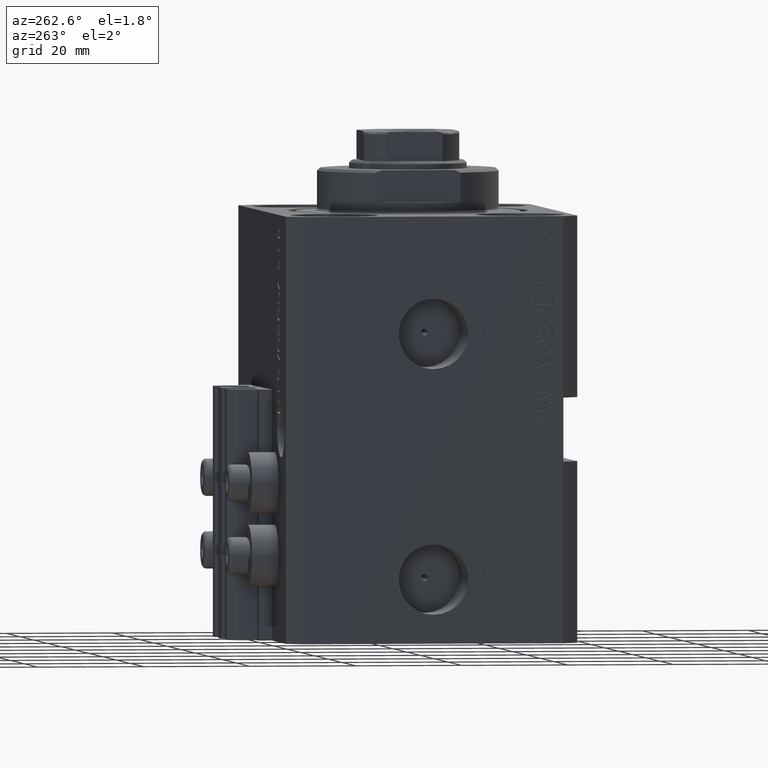
[diagram: clean part render]
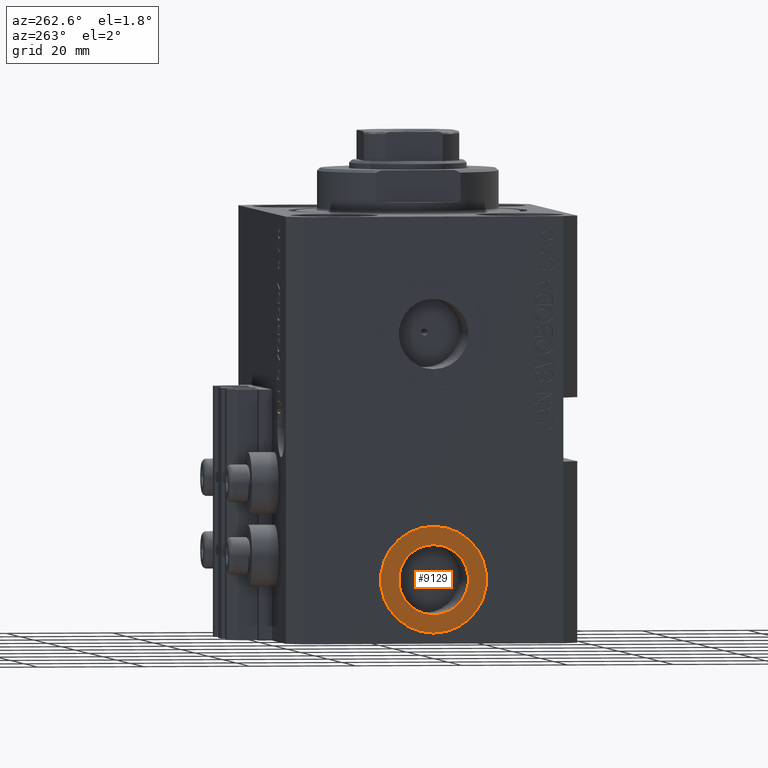
[diagram: same view with one face highlighted and labeled with its STEP entity id]
A machine part, auxiliary view. The second image highlights one B-rep face of the part: STEP entity #9129.
In plain terms, the highlighted planar face has unit normal (-1, 0, 0).
Its self-contained STEP definition (entity closure, byte-faithful):
#1169 = ORIENTED_EDGE ( 'NONE', *, *, #44015, .T. ) ;
#1588 = CARTESIAN_POINT ( 'NONE',  ( -37.39999999999999147, -8.327598234202001119E-15, -58.00000000000000711 ) ) ;
#1876 = DIRECTION ( 'NONE',  ( 0.000000000000000000, 0.000000000000000000, 1.000000000000000000 ) ) ;
#4570 = AXIS2_PLACEMENT_3D ( 'NONE', #13533, #20936, #39599 ) ;
#5835 = EDGE_CURVE ( 'NONE', #27122, #43324, #6504, .T. ) ;
#6504 = CIRCLE ( 'NONE', #15688, 6.580000000000002736 ) ;
#6884 = AXIS2_PLACEMENT_3D ( 'NONE', #28422, #39893, #21704 ) ;
#9129 = ADVANCED_FACE ( 'NONE', ( #20550, #27041 ), #12906, .T. ) ;
#9222 = DIRECTION ( 'NONE',  ( -1.000000000000000000, 0.000000000000000000, 0.000000000000000000 ) ) ;
#10647 = AXIS2_PLACEMENT_3D ( 'NONE', #36035, #31503, #28378 ) ;
#12137 = CIRCLE ( 'NONE', #10647, 6.580000000000002736 ) ;
#12906 = PLANE ( 'NONE',  #22697 ) ;
#13533 = CARTESIAN_POINT ( 'NONE',  ( -37.39999999999999147, -8.327598234202001119E-15, -68.00000000000000000 ) ) ;
#15607 = CARTESIAN_POINT ( 'NONE',  ( -37.39999999999999147, -7.102951435054649637E-15, -78.00000000000000000 ) ) ;
#15675 = CARTESIAN_POINT ( 'NONE',  ( -37.39999999999999147, -8.327598234202001119E-15, -68.00000000000000000 ) ) ;
#15688 = AXIS2_PLACEMENT_3D ( 'NONE', #15675, #9222, #44884 ) ;
#16249 = DIRECTION ( 'NONE',  ( -1.000000000000000000, 0.000000000000000000, 0.000000000000000000 ) ) ;
#16710 = EDGE_CURVE ( 'NONE', #43324, #27122, #12137, .T. ) ;
#18315 = CIRCLE ( 'NONE', #6884, 9.999999999999994671 ) ;
#20212 = VERTEX_POINT ( 'NONE', #15607 ) ;
#20550 = FACE_BOUND ( 'NONE', #35954, .T. ) ;
#20936 = DIRECTION ( 'NONE',  ( -1.000000000000000000, 0.000000000000000000, 0.000000000000000000 ) ) ;
#21704 = DIRECTION ( 'NONE',  ( 0.000000000000000000, 0.000000000000000000, 1.000000000000000000 ) ) ;
#22697 = AXIS2_PLACEMENT_3D ( 'NONE', #41866, #16249, #1876 ) ;
#25827 = CARTESIAN_POINT ( 'NONE',  ( -37.39999999999999147, -7.521780640363043654E-15, -74.58000000000001251 ) ) ;
#26225 = ORIENTED_EDGE ( 'NONE', *, *, #16710, .F. ) ;
#27041 = FACE_OUTER_BOUND ( 'NONE', #41384, .T. ) ;
#27122 = VERTEX_POINT ( 'NONE', #25827 ) ;
#28378 = DIRECTION ( 'NONE',  ( 0.000000000000000000, 0.000000000000000000, 1.000000000000000000 ) ) ;
#28422 = CARTESIAN_POINT ( 'NONE',  ( -37.39999999999999147, -8.327598234202001119E-15, -68.00000000000000000 ) ) ;
#31503 = DIRECTION ( 'NONE',  ( -1.000000000000000000, 0.000000000000000000, 0.000000000000000000 ) ) ;
#35954 = EDGE_LOOP ( 'NONE', ( #26225, #45878 ) ) ;
#36035 = CARTESIAN_POINT ( 'NONE',  ( -37.39999999999999147, -8.327598234202001119E-15, -68.00000000000000000 ) ) ;
#39599 = DIRECTION ( 'NONE',  ( 0.000000000000000000, 0.000000000000000000, 1.000000000000000000 ) ) ;
#39893 = DIRECTION ( 'NONE',  ( -1.000000000000000000, 0.000000000000000000, 0.000000000000000000 ) ) ;
#41196 = ORIENTED_EDGE ( 'NONE', *, *, #43755, .T. ) ;
#41384 = EDGE_LOOP ( 'NONE', ( #41196, #1169 ) ) ;
#41478 = CARTESIAN_POINT ( 'NONE',  ( -37.39999999999999147, -8.327598234202001119E-15, -61.42000000000000171 ) ) ;
#41866 = CARTESIAN_POINT ( 'NONE',  ( -37.39999999999999147, -8.327598234202001119E-15, -68.00000000000000000 ) ) ;
#42036 = VERTEX_POINT ( 'NONE', #1588 ) ;
#43324 = VERTEX_POINT ( 'NONE', #41478 ) ;
#43755 = EDGE_CURVE ( 'NONE', #42036, #20212, #18315, .T. ) ;
#44015 = EDGE_CURVE ( 'NONE', #20212, #42036, #47372, .T. ) ;
#44884 = DIRECTION ( 'NONE',  ( 0.000000000000000000, 0.000000000000000000, 1.000000000000000000 ) ) ;
#45878 = ORIENTED_EDGE ( 'NONE', *, *, #5835, .F. ) ;
#47372 = CIRCLE ( 'NONE', #4570, 9.999999999999994671 ) ;